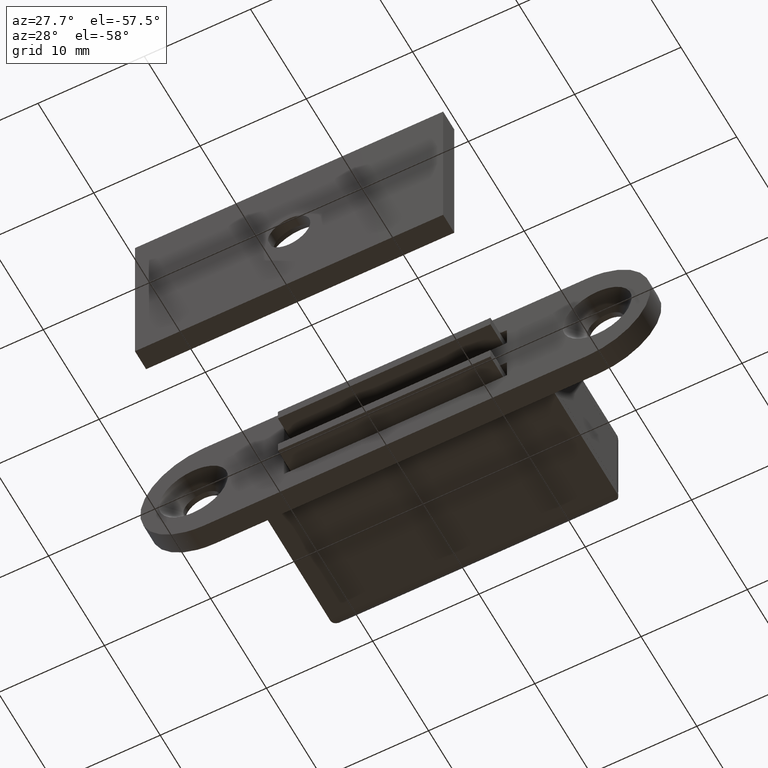
[diagram: clean part render]
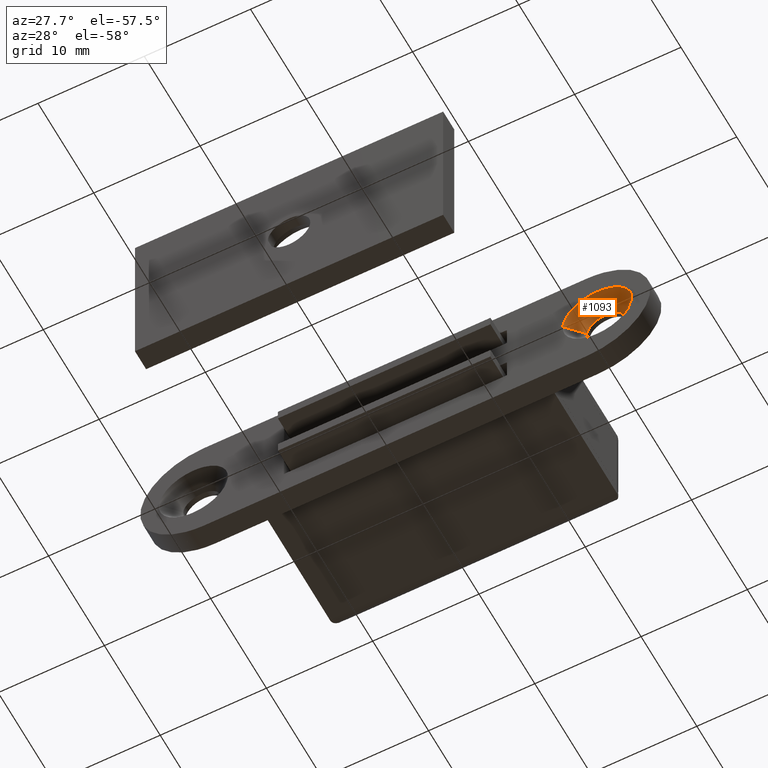
[diagram: same view with one face highlighted and labeled with its STEP entity id]
A machine part, auxiliary view. The second image highlights one B-rep face of the part: STEP entity #1093.
In plain terms, the highlighted face is a freeform B-spline surface patch.
Its self-contained STEP definition (entity closure, byte-faithful):
#923=CARTESIAN_POINT('',(20.746731909557749,-13.500000000004340,-0.106834700305601));
#924=VERTEX_POINT('',#923);
#930=CARTESIAN_POINT('',(19.0,-13.500000000000000,1.749996006488800));
#931=VERTEX_POINT('',#930);
#932=CARTESIAN_POINT('',(20.746731909557752,-13.500000000004340,-0.106834700305601));
#933=CARTESIAN_POINT('',(20.749996004896026,-13.500000000004276,-0.053467213662533));
#934=CARTESIAN_POINT('',(20.749996004920710,-13.500000000004210,1.120068E-010));
#935=CARTESIAN_POINT('',(20.749996005728715,-13.500000000002043,1.749996006543092));
#936=CARTESIAN_POINT('',(19.0,-13.500000000000000,1.749996006488800));
#944=(BOUNDED_CURVE()B_SPLINE_CURVE(2,(#932,#933,#934,#935,#936),.UNSPECIFIED.,.F.,.U.)B_SPLINE_CURVE_WITH_KNOTS((3,2,3),(0.239332962238703,0.250000000000000,0.500000000000000),.UNSPECIFIED.)CURVE()GEOMETRIC_REPRESENTATION_ITEM()RATIONAL_B_SPLINE_CURVE((0.976072041666203,0.987502787899556,1.0,0.707106781186547,1.0))REPRESENTATION_ITEM(''));
#945=EDGE_CURVE('',#924,#931,#944,.T.);
#947=CARTESIAN_POINT('',(17.253268090442251,-13.500000000004340,0.106834700305601));
#948=VERTEX_POINT('',#947);
#949=CARTESIAN_POINT('',(19.0,-13.500000000000000,1.749996006488800));
#950=CARTESIAN_POINT('',(17.353768140474465,-13.500000000002169,1.749996006431085));
#951=CARTESIAN_POINT('',(17.253268090442251,-13.500000000004338,0.106834700305601));
#959=(BOUNDED_CURVE()B_SPLINE_CURVE(2,(#949,#950,#951),.UNSPECIFIED.,.F.,.U.)B_SPLINE_CURVE_WITH_KNOTS((3,3),(0.500000000000000,0.739332962238703),.UNSPECIFIED.)CURVE()GEOMETRIC_REPRESENTATION_ITEM()RATIONAL_B_SPLINE_CURVE((1.0,0.719603993286991,0.976072041666203))REPRESENTATION_ITEM(''));
#960=EDGE_CURVE('',#931,#948,#959,.T.);
#1027=CARTESIAN_POINT('',(20.709301857722281,-13.462500001490110,-0.104545380246385));
#1028=CARTESIAN_POINT('',(20.813847237968670,-13.462500001490113,1.604756477475893));
#1029=CARTESIAN_POINT('',(19.104545380246389,-13.462500001490110,1.709301857722278));
#1030=CARTESIAN_POINT('',(17.395243522524105,-13.462500001490113,1.813847237968663));
#1031=CARTESIAN_POINT('',(17.290698142277719,-13.462500001490110,0.104545380246385));
#1032=CARTESIAN_POINT('',(22.282299854104920,-15.038437438867989,-0.200754059196610));
#1033=CARTESIAN_POINT('',(22.483053913301532,-15.038437438868000,3.081545794908314));
#1034=CARTESIAN_POINT('',(19.200754059196608,-15.038437438867989,3.282299854104924));
#1035=CARTESIAN_POINT('',(15.918454205091694,-15.038437438868000,3.483053913301534));
#1036=CARTESIAN_POINT('',(15.717700145895080,-15.038437438867989,0.200754059196610));
#1044=(BOUNDED_SURFACE()B_SPLINE_SURFACE(2,1,((#1027,#1032),(#1028,#1033),(#1029,#1034),(#1030,#1035),(#1031,#1036)),.UNSPECIFIED.,.F.,.F.,.U.)B_SPLINE_SURFACE_WITH_KNOTS((3,2,3),(2,2),(0.0,5.448454928112263,10.896909856224530),(0.0,2.228712097391302),.UNSPECIFIED.)GEOMETRIC_REPRESENTATION_ITEM()RATIONAL_B_SPLINE_SURFACE(((1.0,1.0),(0.707106781186548,0.707106781186548),(1.0,1.0),(0.707106781186548,0.707106781186548),(1.0,1.0)))REPRESENTATION_ITEM('')SURFACE());
#1045=ORIENTED_EDGE('',*,*,#945,.F.);
#1046=CARTESIAN_POINT('',(22.243934049321091,-14.999999940406580,-0.198407506137247));
#1047=VERTEX_POINT('',#1046);
#1048=CARTESIAN_POINT('',(20.746731909557749,-13.500000000004340,-0.106834700305601));
#1049=CARTESIAN_POINT('',(22.243934049321091,-14.999999940406580,-0.198407506137247));
#1050=QUASI_UNIFORM_CURVE('',1,(#1048,#1049),.UNSPECIFIED.,.F.,.U.);
#1051=EDGE_CURVE('',#924,#1047,#1050,.T.);
#1052=ORIENTED_EDGE('',*,*,#1051,.T.);
#1053=CARTESIAN_POINT('',(19.0,-14.999999940395361,3.249995946884155));
#1054=VERTEX_POINT('',#1053);
#1055=CARTESIAN_POINT('',(22.243934049321094,-14.999999940406576,-0.198407506137246));
#1056=CARTESIAN_POINT('',(22.249995946895190,-14.999999940406417,-0.099296356929859));
#1057=CARTESIAN_POINT('',(22.249995946895019,-14.999999940406250,-6.647800E-013));
#1058=CARTESIAN_POINT('',(22.249995946889428,-14.999999940400638,3.249995946883833));
#1059=CARTESIAN_POINT('',(19.0,-14.999999940395361,3.249995946884155));
#1067=(BOUNDED_CURVE()B_SPLINE_CURVE(2,(#1055,#1056,#1057,#1058,#1059),.UNSPECIFIED.,.F.,.U.)B_SPLINE_CURVE_WITH_KNOTS((3,2,3),(0.239332962237443,0.250000000000000,0.500000000000000),.UNSPECIFIED.)CURVE()GEOMETRIC_REPRESENTATION_ITEM()RATIONAL_B_SPLINE_CURVE((0.976072041663503,0.987502787898080,1.0,0.707106781186547,1.0))REPRESENTATION_ITEM(''));
#1068=EDGE_CURVE('',#1047,#1054,#1067,.T.);
#1069=ORIENTED_EDGE('',*,*,#1068,.T.);
#1070=CARTESIAN_POINT('',(15.756065950678909,-14.999999940406580,0.198407506137246));
#1071=VERTEX_POINT('',#1070);
#1072=CARTESIAN_POINT('',(19.0,-14.999999940395361,3.249995946884155));
#1073=CARTESIAN_POINT('',(15.942709095421897,-14.999999940400965,3.249995946884496));
#1074=CARTESIAN_POINT('',(15.756065950678908,-14.999999940406580,0.198407506137246));
#1082=(BOUNDED_CURVE()B_SPLINE_CURVE(2,(#1072,#1073,#1074),.UNSPECIFIED.,.F.,.U.)B_SPLINE_CURVE_WITH_KNOTS((3,3),(0.500000000000000,0.739332962237443),.UNSPECIFIED.)CURVE()GEOMETRIC_REPRESENTATION_ITEM()RATIONAL_B_SPLINE_CURVE((1.0,0.719603993288468,0.976072041663503))REPRESENTATION_ITEM(''));
#1083=EDGE_CURVE('',#1054,#1071,#1082,.T.);
#1084=ORIENTED_EDGE('',*,*,#1083,.T.);
#1085=CARTESIAN_POINT('',(17.253268090442251,-13.500000000004340,0.106834700305601));
#1086=CARTESIAN_POINT('',(15.756065950678909,-14.999999940406580,0.198407506137246));
#1087=QUASI_UNIFORM_CURVE('',1,(#1085,#1086),.UNSPECIFIED.,.F.,.U.);
#1088=EDGE_CURVE('',#948,#1071,#1087,.T.);
#1089=ORIENTED_EDGE('',*,*,#1088,.F.);
#1090=ORIENTED_EDGE('',*,*,#960,.F.);
#1091=EDGE_LOOP('',(#1045,#1052,#1069,#1084,#1089,#1090));
#1092=FACE_OUTER_BOUND('',#1091,.T.);
#1093=ADVANCED_FACE('',(#1092),#1044,.F.);